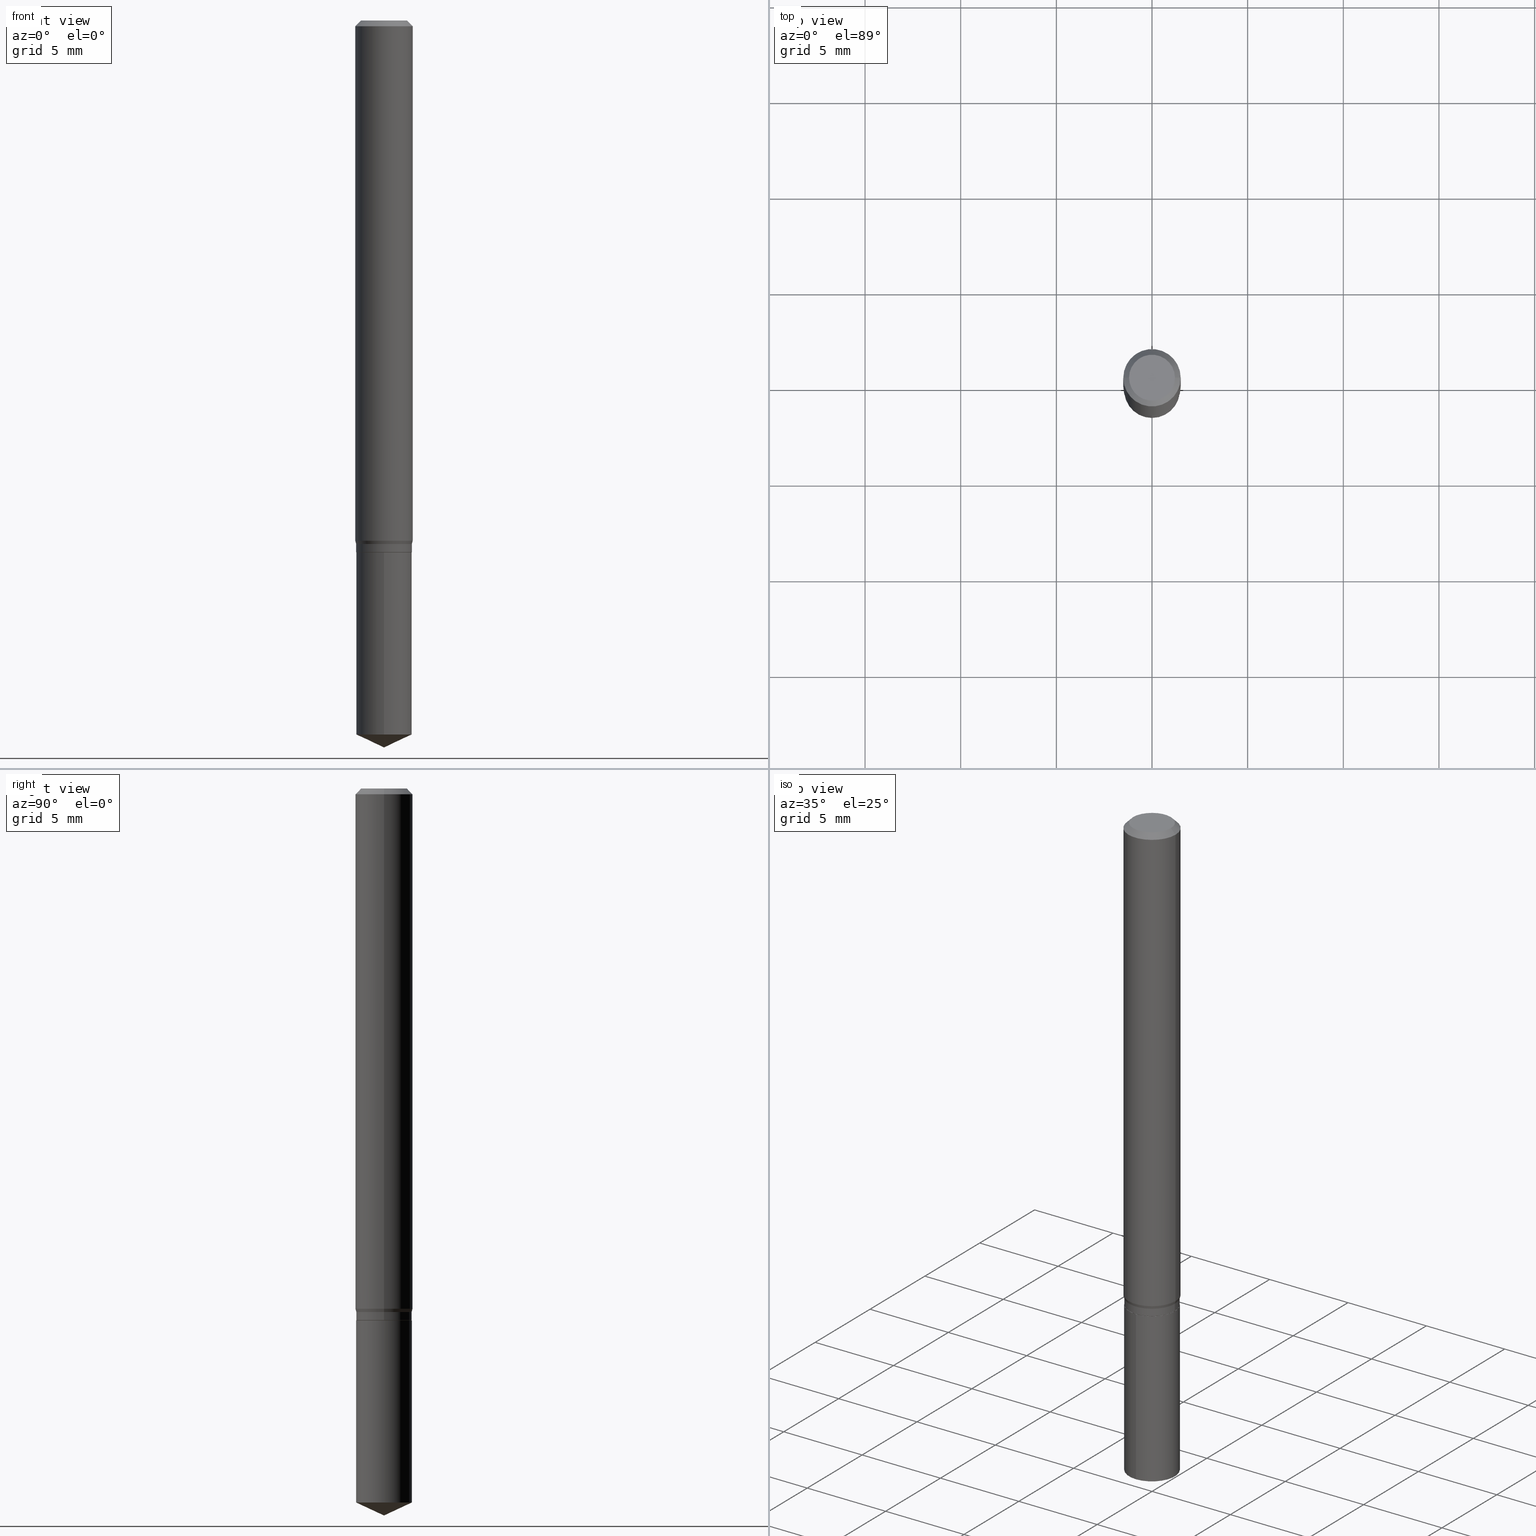
[diagram: canonical four-view strip — front | top / right | iso, engineering-drawing reading convention]
A machine part, canonical four-view strip (front | top / right | iso — engineering-drawing reading convention). The complete STEP part file that produces these views, byte-faithful:
ISO-10303-21;
HEADER;
FILE_DESCRIPTION (( 'STEP AP203' ),
    '1' );
FILE_NAME ('08054.STEP',
    '2024-04-24T10:05:20',
    ( '' ),
    ( '' ),
    'SwSTEP 2.0',
    'SolidWorks 2023',
    '' );
FILE_SCHEMA (( 'CONFIG_CONTROL_DESIGN' ));
ENDSEC;

DATA;
#1 = LENGTH_MEASURE_WITH_UNIT ( LENGTH_MEASURE( 0.02539999999999999897 ), #347 );
#2 = CARTESIAN_POINT ( 'NONE',  ( 2.676565608369632355E-29, -3.821426325363822773E-15, -1.094500000000000028 ) ) ;
#3 = ORIENTED_EDGE ( 'NONE', *, *, #273, .T. ) ;
#4 = CARTESIAN_POINT ( 'NONE',  ( 2.888098660104662014E-31, -4.123439461173777182E-17, -0.01181000000000006350 ) ) ;
#5 = CARTESIAN_POINT ( 'NONE',  ( 3.658672935554494692E-29, -5.223595400746700193E-15, -1.496099999999999985 ) ) ;
#6 = ORIENTED_EDGE ( 'NONE', *, *, #419, .T. ) ;
#7 = DIRECTION ( 'NONE',  ( 1.000000000000000000, -6.982962677686265133E-15, 0.000000000000000000 ) ) ;
#8 = CIRCLE ( 'NONE', #353, 0.05905000000000013016 ) ;
#9 = VERTEX_POINT ( 'NONE', #481 ) ;
#10 = VECTOR ( 'NONE', #381, 39.37007874015748854 ) ;
#11 = CYLINDRICAL_SURFACE ( 'NONE', #90, 0.05729999999999999677 ) ;
#12 = APPROVAL_STATUS ( 'not_yet_approved' ) ;
#13 = DIRECTION ( 'NONE',  ( -2.445458899330790108E-29, 3.491495526022433205E-15, 1.000000000000000000 ) ) ;
#14 = ORIENTED_EDGE ( 'NONE', *, *, #310, .T. ) ;
#15 = DIRECTION ( 'NONE',  ( 1.000000000000000000, -6.982962677686265133E-15, 0.000000000000000000 ) ) ;
#16 = ORIENTED_EDGE ( 'NONE', *, *, #161, .T. ) ;
#17 = DIRECTION ( 'NONE',  ( -2.445458899330790108E-29, 3.491495526022433205E-15, 1.000000000000000000 ) ) ;
#18 = ORIENTED_EDGE ( 'NONE', *, *, #161, .F. ) ;
#19 = APPROVAL_DATE_TIME ( #99, #73 ) ;
#20 = ORIENTED_EDGE ( 'NONE', *, *, #114, .F. ) ;
#21 = PERSON_AND_ORGANIZATION_ROLE ( 'classification_officer' ) ;
#22 = UNCERTAINTY_MEASURE_WITH_UNIT (LENGTH_MEASURE( 1.000000000000000082E-05 ), #42, 'distance_accuracy_value', 'NONE');
#23 = CARTESIAN_POINT ( 'NONE',  ( 4.071409875905640569E-16, 0.05729999999999616650, -1.094500000000000028 ) ) ;
#24 = EDGE_CURVE ( 'NONE', #196, #249, #103, .T. ) ;
#25 = APPROVAL_PERSON_ORGANIZATION ( #468, #73, #285 ) ;
#26 = ORIENTED_EDGE ( 'NONE', *, *, #419, .F. ) ;
#27 = ADVANCED_FACE ( 'NONE', ( #179 ), #408, .F. ) ;
#28 = CARTESIAN_POINT ( 'NONE',  ( 2.634503544903247383E-29, -3.761372846335720684E-15, -1.077299999999999924 ) ) ;
#29 = CARTESIAN_POINT ( 'NONE',  ( -0.05679999999999998939, -3.415188824277974545E-15, -1.094500000000000028 ) ) ;
#30 = CIRCLE ( 'NONE', #112, 0.05729999999999999677 ) ;
#31 = AXIS2_PLACEMENT_3D ( 'NONE', #78, #153, #76 ) ;
#32 = LINE ( 'NONE', #5, #183 ) ;
#33 = VECTOR ( 'NONE', #447, 39.37007874015748143 ) ;
#34 = EDGE_CURVE ( 'NONE', #196, #314, #175, .T. ) ;
#35 = FACE_OUTER_BOUND ( 'NONE', #241, .T. ) ;
#36 = EDGE_CURVE ( 'NONE', #314, #251, #63, .T. ) ;
#37 = DIRECTION ( 'NONE',  ( -2.445468806185136597E-29, 3.491481338843145583E-15, 1.000000000000000000 ) ) ;
#38 = AXIS2_PLACEMENT_3D ( 'NONE', #56, #17, #167 ) ;
#39 = AXIS2_PLACEMENT_3D ( 'NONE', #74, #232, #177 ) ;
#40 = ORIENTED_EDGE ( 'NONE', *, *, #123, .F. ) ;
#41 = DIRECTION ( 'NONE',  ( 1.000000000000000000, -6.982962677686266711E-15, 4.876176775795936353E-29 ) ) ;
#42 =( CONVERSION_BASED_UNIT ( 'INCH', #1 ) LENGTH_UNIT ( ) NAMED_UNIT ( #290 ) );
#43 = DIRECTION ( 'NONE',  ( -6.328713451373358335E-15, -0.9063077870366469391, 0.4226182617407059361 ) ) ;
#44 = ORIENTED_EDGE ( 'NONE', *, *, #248, .T. ) ;
#45 = CARTESIAN_POINT ( 'NONE',  ( -0.05904999999999999832, 3.711095515056362547E-16, -0.01181000000000006350 ) ) ;
#46 = EDGE_CURVE ( 'NONE', #234, #472, #330, .T. ) ;
#47 = VECTOR ( 'NONE', #460, 39.37007874015748143 ) ;
#48 = APPROVAL_DATE_TIME ( #362, #307 ) ;
#49 = AXIS2_PLACEMENT_3D ( 'NONE', #332, #306, #266 ) ;
#50 = CARTESIAN_POINT ( 'NONE',  ( 2.676565608369631794E-29, -3.821426325363822773E-15, -1.094499999999999806 ) ) ;
#51 = EDGE_LOOP ( 'NONE', ( #281, #361, #44, #26 ) ) ;
#52 = CALENDAR_DATE ( 2024, 24, 4 ) ;
#53 = CARTESIAN_POINT ( 'NONE',  ( 2.676565608369631794E-29, -3.821426325363822773E-15, -1.094499999999999806 ) ) ;
#54 = VERTEX_POINT ( 'NONE', #260 ) ;
#55 = PERSON_AND_ORGANIZATION_ROLE ( 'creator' ) ;
#56 = CARTESIAN_POINT ( 'NONE',  ( 2.676565608369631794E-29, -3.821426325363822773E-15, -1.094499999999999806 ) ) ;
#57 = CARTESIAN_POINT ( 'NONE',  ( -0.05730000000000001065, 4.071409875905374822E-16, -2.818549806716061527E-30 ) ) ;
#58 = PERSON_AND_ORGANIZATION ( #371, #289 ) ;
#59 = ADVANCED_FACE ( 'NONE', ( #411 ), #254, .T. ) ;
#60 = AXIS2_PLACEMENT_3D ( 'NONE', #259, #98, #410 ) ;
#61 = ORIENTED_EDGE ( 'NONE', *, *, #392, .F. ) ;
#62 = APPROVAL_STATUS ( 'not_yet_approved' ) ;
#63 = LINE ( 'NONE', #57, #465 ) ;
#64 = CARTESIAN_POINT ( 'NONE',  ( 0.000000000000000000, 0.000000000000000000, 0.000000000000000000 ) ) ;
#65 = VECTOR ( 'NONE', #250, 39.37007874015748143 ) ;
#66 = APPROVAL_PERSON_ORGANIZATION ( #124, #365, #252 ) ;
#67 = DIRECTION ( 'NONE',  ( 1.000000000000000000, -6.982962677686265922E-15, 0.000000000000000000 ) ) ;
#68 = CARTESIAN_POINT ( 'NONE',  ( -9.261924752013118283E-28, 1.322368428517963298E-13, 37.87397874015748300 ) ) ;
#69 = ADVANCED_FACE ( 'NONE', ( #215 ), #154, .T. ) ;
#70 = DIRECTION ( 'NONE',  ( 1.000000000000000000, -6.982962677686266711E-15, 4.876176775795936353E-29 ) ) ;
#71 = ADVANCED_FACE ( 'NONE', ( #428 ), #453, .T. ) ;
#72 = AXIS2_PLACEMENT_3D ( 'NONE', #210, #430, #15 ) ;
#73 = APPROVAL ( #12, 'UNSPECIFIED' ) ;
#74 = CARTESIAN_POINT ( 'NONE',  ( 0.000000000000000000, 0.000000000000000000, 0.000000000000000000 ) ) ;
#75 = ADVANCED_FACE ( 'NONE', ( #348 ), #142, .T. ) ;
#76 = DIRECTION ( 'NONE',  ( -6.982962677686265922E-15, -1.000000000000000000, 3.520397390770503963E-15 ) ) ;
#77 = VERTEX_POINT ( 'NONE', #157 ) ;
#78 = CARTESIAN_POINT ( 'NONE',  ( -9.261924752013118283E-28, 1.322368428517963298E-13, 37.87397874015748300 ) ) ;
#79 = DIRECTION ( 'NONE',  ( -2.445468806185136597E-29, 3.491481338843145583E-15, 1.000000000000000000 ) ) ;
#80 = ORIENTED_EDGE ( 'NONE', *, *, #105, .T. ) ;
#81 = CLOSED_SHELL ( 'NONE', ( #71, #69, #217, #485, #231, #438, #399, #59, #275, #458, #27, #75 ) ) ;
#82 = PLANE ( 'NONE',  #379 ) ;
#83 = DIRECTION ( 'NONE',  ( -2.445468806185136597E-29, 3.491481338843145583E-15, 1.000000000000000000 ) ) ;
#84 = ORIENTED_EDGE ( 'NONE', *, *, #186, .T. ) ;
#85 = LINE ( 'NONE', #318, #47 ) ;
#86 = PLANE ( 'NONE',  #418 ) ;
#87 = EDGE_LOOP ( 'NONE', ( #3, #244, #300, #439 ) ) ;
#88 = CALENDAR_DATE ( 2024, 24, 4 ) ;
#89 = DIRECTION ( 'NONE',  ( 2.445458899330789267E-29, -3.491495526022433599E-15, -1.000000000000000000 ) ) ;
#90 = AXIS2_PLACEMENT_3D ( 'NONE', #50, #13, #437 ) ;
#91 = ORIENTED_EDGE ( 'NONE', *, *, #105, .F. ) ;
#92 = MANIFOLD_SOLID_BREP ( 'Body-Move/Copy2[1]', #305 ) ;
#93 = DIRECTION ( 'NONE',  ( -2.445458899330790108E-29, 3.491495526022433205E-15, 1.000000000000000000 ) ) ;
#94 = ORIENTED_EDGE ( 'NONE', *, *, #261, .F. ) ;
#95 = CALENDAR_DATE ( 2024, 24, 4 ) ;
#96 = CARTESIAN_POINT ( 'NONE',  ( 3.593320637366847037E-29, -5.130320162458476413E-15, -1.469380571187718143 ) ) ;
#97 = EDGE_CURVE ( 'NONE', #145, #204, #423, .T. ) ;
#98 = DIRECTION ( 'NONE',  ( -2.438088387897960049E-29, 3.491481338843145188E-15, 1.000000000000000000 ) ) ;
#99 = DATE_AND_TIME ( #95, #230 ) ;
#100 = ORIENTED_EDGE ( 'NONE', *, *, #261, .T. ) ;
#101 = AXIS2_PLACEMENT_3D ( 'NONE', #246, #201, #354 ) ;
#102 = PRODUCT_DEFINITION_FORMATION_WITH_SPECIFIED_SOURCE ( 'ANY', '', #267, .NOT_KNOWN. ) ;
#103 = CIRCLE ( 'NONE', #454, 0.05679999999999998939 ) ;
#104 = ORIENTED_EDGE ( 'NONE', *, *, #376, .F. ) ;
#105 = EDGE_CURVE ( 'NONE', #9, #251, #223, .T. ) ;
#106 = EDGE_LOOP ( 'NONE', ( #349, #120, #20, #369 ) ) ;
#107 = DIRECTION ( 'NONE',  ( -2.445468806185136597E-29, 3.491481338843145583E-15, 1.000000000000000000 ) ) ;
#108 = CARTESIAN_POINT ( 'NONE',  ( 3.593320637366847037E-29, -5.130320162458476413E-15, -1.469380571187718143 ) ) ;
#109 = CARTESIAN_POINT ( 'NONE',  ( 8.265746106709734507E-48, -1.180129479067563789E-33, -3.380025165646692144E-19 ) ) ;
#110 = LINE ( 'NONE', #391, #488 ) ;
#111 = AXIS2_PLACEMENT_3D ( 'NONE', #68, #375, #200 ) ;
#112 = AXIS2_PLACEMENT_3D ( 'NONE', #108, #185, #416 ) ;
#113 = DIRECTION ( 'NONE',  ( -1.000000000000000000, 6.982962677686265922E-15, -4.876176775795935793E-29 ) ) ;
#114 = EDGE_CURVE ( 'NONE', #162, #333, #370, .T. ) ;
#115 = LINE ( 'NONE', #233, #10 ) ;
#116 = LINE ( 'NONE', #190, #474 ) ;
#117 = ORIENTED_EDGE ( 'NONE', *, *, #312, .T. ) ;
#118 = DIRECTION ( 'NONE',  ( -6.982962677686265922E-15, -1.000000000000000000, 2.383811512796041453E-15 ) ) ;
#119 = DIRECTION ( 'NONE',  ( -2.445468806185136597E-29, 3.491481338843145583E-15, 1.000000000000000000 ) ) ;
#120 = ORIENTED_EDGE ( 'NONE', *, *, #444, .T. ) ;
#121 = FACE_OUTER_BOUND ( 'NONE', #87, .T. ) ;
#122 = ORIENTED_EDGE ( 'NONE', *, *, #222, .T. ) ;
#123 = EDGE_CURVE ( 'NONE', #249, #328, #461, .T. ) ;
#124 = PERSON_AND_ORGANIZATION ( #371, #289 ) ;
#125 = CC_DESIGN_PERSON_AND_ORGANIZATION_ASSIGNMENT ( #140, #21, ( #263 ) ) ;
#126 = CARTESIAN_POINT ( 'NONE',  ( 0.05730000000000001065, -4.219804346125824087E-15, -1.093999999999999861 ) ) ;
#127 = ORIENTED_EDGE ( 'NONE', *, *, #273, .F. ) ;
#128 = ADVANCED_FACE ( 'NONE', ( #415 ), #256, .T. ) ;
#129 = CARTESIAN_POINT ( 'NONE',  ( -0.05730000000000000371, -3.383385727924523445E-15, -1.077299999999999924 ) ) ;
#130 = AXIS2_PLACEMENT_3D ( 'NONE', #264, #240, #67 ) ;
#131 = ORIENTED_EDGE ( 'NONE', *, *, #24, .F. ) ;
#132 = LOCAL_TIME ( 6, 5, 20.00000000000000000, #255 ) ;
#133 = DATE_AND_TIME ( #52, #397 ) ;
#134 = CARTESIAN_POINT ( 'NONE',  ( 2.888098660104662014E-31, -4.123439461173777182E-17, -0.01181000000000006350 ) ) ;
#135 = CC_DESIGN_PERSON_AND_ORGANIZATION_ASSIGNMENT ( #367, #323, ( #267 ) ) ;
#136 = EDGE_LOOP ( 'NONE', ( #117, #351, #91, #441 ) ) ;
#137 = APPROVAL_DATE_TIME ( #133, #365 ) ;
#138 = EDGE_LOOP ( 'NONE', ( #18, #184, #141 ) ) ;
#139 = CC_DESIGN_DATE_AND_TIME_ASSIGNMENT ( #245, #445, ( #263 ) ) ;
#140 = PERSON_AND_ORGANIZATION ( #371, #289 ) ;
#141 = ORIENTED_EDGE ( 'NONE', *, *, #165, .F. ) ;
#142 = CONICAL_SURFACE ( 'NONE', #338, 0.05679999999999998939, 0.7853981633972946241 ) ;
#143 =( GEOMETRIC_REPRESENTATION_CONTEXT ( 3 ) GLOBAL_UNCERTAINTY_ASSIGNED_CONTEXT ( ( #22 ) ) GLOBAL_UNIT_ASSIGNED_CONTEXT ( ( #42, #311, #156 ) ) REPRESENTATION_CONTEXT ( 'NONE', 'WORKASPACE' ) );
#144 = AXIS2_PLACEMENT_3D ( 'NONE', #449, #107, #389 ) ;
#145 = VERTEX_POINT ( 'NONE', #313 ) ;
#146 = PRODUCT_RELATED_PRODUCT_CATEGORY ( 'detail', '', ( #267 ) ) ;
#147 = CARTESIAN_POINT ( 'NONE',  ( 3.658651059288795076E-29, -5.223626456482161457E-15, -1.496099999999999985 ) ) ;
#148 = CARTESIAN_POINT ( 'NONE',  ( 0.05905000000000013016, -4.150913617390172394E-15, -1.070768911086753983 ) ) ;
#149 = VECTOR ( 'NONE', #43, 39.37007874015748143 ) ;
#150 = CONICAL_SURFACE ( 'NONE', #31, 84.42940631927314143, 1.134464013796310455 ) ;
#151 = CARTESIAN_POINT ( 'NONE',  ( -4.001237614313871708E-16, -0.05730000000000515237, -1.469380571187717921 ) ) ;
#152 = CC_DESIGN_PERSON_AND_ORGANIZATION_ASSIGNMENT ( #219, #292, ( #102 ) ) ;
#153 = DIRECTION ( 'NONE',  ( -2.445458899330790108E-29, 3.491495526022433205E-15, 1.000000000000000000 ) ) ;
#154 = CONICAL_SURFACE ( 'NONE', #49, 0.05904999999999999832, 0.7853981633974456145 ) ;
#155 = CIRCLE ( 'NONE', #475, 0.05904999999999999832 ) ;
#156 =( NAMED_UNIT ( * ) SI_UNIT ( $, .STERADIAN. ) SOLID_ANGLE_UNIT ( ) );
#157 = CARTESIAN_POINT ( 'NONE',  ( -0.04724000000000000421, 3.504923541997677355E-16, -3.380025165670481712E-19 ) ) ;
#158 = ORIENTED_EDGE ( 'NONE', *, *, #191, .T. ) ;
#159 = CARTESIAN_POINT ( 'NONE',  ( 4.132873053354867254E-48, -5.900647395337818946E-34, -1.690012582823346072E-19 ) ) ;
#160 = FACE_OUTER_BOUND ( 'NONE', #136, .T. ) ;
#161 = EDGE_CURVE ( 'NONE', #145, #234, #32, .T. ) ;
#162 = VERTEX_POINT ( 'NONE', #262 ) ;
#163 = FACE_OUTER_BOUND ( 'NONE', #429, .T. ) ;
#164 = VECTOR ( 'NONE', #187, 39.37007874015748143 ) ;
#165 = EDGE_CURVE ( 'NONE', #234, #204, #30, .T. ) ;
#166 = CC_DESIGN_PERSON_AND_ORGANIZATION_ASSIGNMENT ( #356, #55, ( #225 ) ) ;
#167 = DIRECTION ( 'NONE',  ( -6.982962677686265922E-15, -1.000000000000000000, 2.383811512796041453E-15 ) ) ;
#168 = ORIENTED_EDGE ( 'NONE', *, *, #480, .F. ) ;
#169 = COORDINATED_UNIVERSAL_TIME_OFFSET ( 5, 0, .BEHIND. ) ;
#170 = DIRECTION ( 'NONE',  ( -1.000000000000000000, 6.982962677686266711E-15, 0.000000000000000000 ) ) ;
#171 = ADVANCED_BREP_SHAPE_REPRESENTATION ( '08054', ( #92, #406, #39 ), #143 ) ;
#172 = EDGE_LOOP ( 'NONE', ( #405, #16, #127 ) ) ;
#173 = CARTESIAN_POINT ( 'NONE',  ( 0.04724000000000000421, -3.852183633974369345E-16, -3.380025165621689721E-19 ) ) ;
#174 = VECTOR ( 'NONE', #237, 39.37007874015748143 ) ;
#175 = LINE ( 'NONE', #218, #189 ) ;
#176 = CC_DESIGN_APPROVAL ( #365, ( #225 ) ) ;
#177 = DIRECTION ( 'NONE',  ( 1.000000000000000000, 0.000000000000000000, 0.000000000000000000 ) ) ;
#178 = DIRECTION ( 'NONE',  ( -2.445468806185136597E-29, 3.491481338843145583E-15, 1.000000000000000000 ) ) ;
#179 = FACE_OUTER_BOUND ( 'NONE', #443, .T. ) ;
#180 = PERSON_AND_ORGANIZATION_ROLE ( 'creator' ) ;
#181 = VERTEX_POINT ( 'NONE', #148 ) ;
#182 = ORIENTED_EDGE ( 'NONE', *, *, #46, .F. ) ;
#183 = VECTOR ( 'NONE', #341, 39.37007874015747433 ) ;
#184 = ORIENTED_EDGE ( 'NONE', *, *, #97, .T. ) ;
#185 = DIRECTION ( 'NONE',  ( -2.445458899330790108E-29, 3.491495526022433205E-15, 1.000000000000000000 ) ) ;
#186 = EDGE_CURVE ( 'NONE', #251, #9, #334, .T. ) ;
#187 = DIRECTION ( 'NONE',  ( 0.7071067811864388819, -2.468850131081119129E-15, 0.7071067811866561525 ) ) ;
#188 = CC_DESIGN_APPROVAL ( #307, ( #263 ) ) ;
#189 = VECTOR ( 'NONE', #366, 39.37007874015748143 ) ;
#190 = CARTESIAN_POINT ( 'NONE',  ( 0.05730000000000001065, -4.001237614314231626E-16, 2.794049292531071960E-30 ) ) ;
#191 = EDGE_CURVE ( 'NONE', #77, #390, #298, .T. ) ;
#192 = CARTESIAN_POINT ( 'NONE',  ( 2.676565608369631794E-29, -3.821426325363822773E-15, -1.094499999999999806 ) ) ;
#193 = DIRECTION ( 'NONE',  ( -2.445468806185136597E-29, 3.491481338843145583E-15, 1.000000000000000000 ) ) ;
#194 = CIRCLE ( 'NONE', #378, 0.05730000000000001065 ) ;
#195 = LOCAL_TIME ( 6, 5, 20.00000000000000000, #212 ) ;
#196 = VERTEX_POINT ( 'NONE', #29 ) ;
#197 = FACE_OUTER_BOUND ( 'NONE', #402, .T. ) ;
#198 = CARTESIAN_POINT ( 'NONE',  ( 4.071409875905733753E-16, 0.05729999999999488280, -1.469380571187718587 ) ) ;
#199 = ORIENTED_EDGE ( 'NONE', *, *, #123, .T. ) ;
#200 = DIRECTION ( 'NONE',  ( -6.982962677686265922E-15, -1.000000000000000000, 3.520397390770503963E-15 ) ) ;
#201 = DIRECTION ( 'NONE',  ( -2.445458899330790108E-29, 3.491495526022433205E-15, 1.000000000000000000 ) ) ;
#202 = CIRCLE ( 'NONE', #385, 0.05729999999999999677 ) ;
#203 = EDGE_CURVE ( 'NONE', #328, #9, #116, .T. ) ;
#204 = VERTEX_POINT ( 'NONE', #151 ) ;
#205 = CIRCLE ( 'NONE', #308, 0.05729999999999999677 ) ;
#206 = SHAPE_DEFINITION_REPRESENTATION ( #380, #171 ) ;
#207 = DIRECTION ( 'NONE',  ( -6.982962677686265922E-15, -1.000000000000000000, 4.767623025592082905E-15 ) ) ;
#208 = ORIENTED_EDGE ( 'NONE', *, *, #24, .T. ) ;
#209 = DATE_AND_TIME ( #88, #346 ) ;
#210 = CARTESIAN_POINT ( 'NONE',  ( 2.618531970695483094E-29, -3.738569671272796685E-15, -1.070768911086753983 ) ) ;
#211 = EDGE_LOOP ( 'NONE', ( #258, #208, #199, #421 ) ) ;
#212 = COORDINATED_UNIVERSAL_TIME_OFFSET ( 5, 0, .BEHIND. ) ;
#213 = CARTESIAN_POINT ( 'NONE',  ( 2.675342873966538993E-29, -3.819680584694400481E-15, -1.093999999999999861 ) ) ;
#214 = CONICAL_SURFACE ( 'NONE', #216, 0.05730000000000000371, 0.2617993877991509621 ) ;
#215 = FACE_OUTER_BOUND ( 'NONE', #355, .T. ) ;
#216 = AXIS2_PLACEMENT_3D ( 'NONE', #466, #388, #490 ) ;
#217 = ADVANCED_FACE ( 'NONE', ( #224 ), #489, .T. ) ;
#218 = CARTESIAN_POINT ( 'NONE',  ( -0.05679999999999998939, -3.417838051452086140E-15, -1.094500000000000028 ) ) ;
#219 = PERSON_AND_ORGANIZATION ( #371, #289 ) ;
#220 = DIRECTION ( 'NONE',  ( -2.445468806185136877E-29, 3.491481338843145188E-15, 1.000000000000000000 ) ) ;
#221 = DIRECTION ( 'NONE',  ( -2.445468806185136597E-29, 3.491481338843145583E-15, 1.000000000000000000 ) ) ;
#222 = EDGE_CURVE ( 'NONE', #9, #181, #228, .T. ) ;
#223 = CIRCLE ( 'NONE', #130, 0.05730000000000000371 ) ;
#224 = FACE_OUTER_BOUND ( 'NONE', #106, .T. ) ;
#225 = PRODUCT_DEFINITION ( 'UNKNOWN', '', #102, #272 ) ;
#226 = APPLICATION_CONTEXT ( 'configuration controlled 3d designs of mechanical parts and assemblies' ) ;
#227 = DIRECTION ( 'NONE',  ( 1.000000000000000000, -6.982962677686265922E-15, 0.000000000000000000 ) ) ;
#228 = LINE ( 'NONE', #373, #174 ) ;
#229 = CIRCLE ( 'NONE', #72, 0.05905000000000013016 ) ;
#230 = LOCAL_TIME ( 6, 5, 20.00000000000000000, #169 ) ;
#231 = ADVANCED_FACE ( 'NONE', ( #160 ), #377, .T. ) ;
#232 = DIRECTION ( 'NONE',  ( 0.000000000000000000, 0.000000000000000000, 1.000000000000000000 ) ) ;
#233 = CARTESIAN_POINT ( 'NONE',  ( 0.05904999999999999832, -4.463468013801466955E-16, -0.01181000000000006350 ) ) ;
#234 = VERTEX_POINT ( 'NONE', #198 ) ;
#235 = CARTESIAN_POINT ( 'NONE',  ( 2.634503544903247383E-29, -3.761372846335720684E-15, -1.077299999999999924 ) ) ;
#236 = AXIS2_PLACEMENT_3D ( 'NONE', #28, #342, #227 ) ;
#237 = DIRECTION ( 'NONE',  ( 0.2588190451025222383, 1.565188264969614868E-15, 0.9659258262890678681 ) ) ;
#238 = ORIENTED_EDGE ( 'NONE', *, *, #165, .T. ) ;
#239 = FACE_OUTER_BOUND ( 'NONE', #467, .T. ) ;
#240 = DIRECTION ( 'NONE',  ( -2.445468806185136597E-29, 3.491481338843145583E-15, 1.000000000000000000 ) ) ;
#241 = EDGE_LOOP ( 'NONE', ( #158, #446 ) ) ;
#242 = APPLICATION_PROTOCOL_DEFINITION ( 'international standard', 'config_control_design', 1994, #226 ) ;
#243 = CARTESIAN_POINT ( 'NONE',  ( -0.05904999999999999832, -1.470326547475926925E-15, -0.01181000000000006350 ) ) ;
#244 = ORIENTED_EDGE ( 'NONE', *, *, #46, .T. ) ;
#245 = DATE_AND_TIME ( #359, #132 ) ;
#246 = CARTESIAN_POINT ( 'NONE',  ( 2.676565608369631794E-29, -3.821426325363822773E-15, -1.094499999999999806 ) ) ;
#247 = VECTOR ( 'NONE', #278, 39.37007874015748143 ) ;
#248 = EDGE_CURVE ( 'NONE', #181, #162, #487, .T. ) ;
#249 = VERTEX_POINT ( 'NONE', #404 ) ;
#250 = DIRECTION ( 'NONE',  ( -2.445458899330790108E-29, 3.491495526022433599E-15, 1.000000000000000000 ) ) ;
#251 = VERTEX_POINT ( 'NONE', #129 ) ;
#252 = APPROVAL_ROLE ( '' ) ;
#253 = DIRECTION ( 'NONE',  ( 1.000000000000000000, -6.982962677686265133E-15, 0.000000000000000000 ) ) ;
#254 = CYLINDRICAL_SURFACE ( 'NONE', #396, 0.05905000000000006771 ) ;
#255 = COORDINATED_UNIVERSAL_TIME_OFFSET ( 5, 0, .BEHIND. ) ;
#256 = CONICAL_SURFACE ( 'NONE', #111, 84.42940631927314143, 1.134464013796310455 ) ;
#257 = AXIS2_PLACEMENT_3D ( 'NONE', #422, #343, #420 ) ;
#258 = ORIENTED_EDGE ( 'NONE', *, *, #34, .F. ) ;
#259 = CARTESIAN_POINT ( 'NONE',  ( 8.386156365596109893E-30, -6.453475294611654186E-15, -1.094500000000000028 ) ) ;
#260 = CARTESIAN_POINT ( 'NONE',  ( -4.001237614313962920E-16, -0.05730000000000382010, -1.094499999999999806 ) ) ;
#261 = EDGE_CURVE ( 'NONE', #77, #333, #280, .T. ) ;
#262 = CARTESIAN_POINT ( 'NONE',  ( 0.05904999999999999832, -4.535783407291118600E-16, -0.01181000000000006350 ) ) ;
#263 = SECURITY_CLASSIFICATION ( '', '', #435 ) ;
#264 = CARTESIAN_POINT ( 'NONE',  ( 2.634503544903247383E-29, -3.761372846335720684E-15, -1.077299999999999924 ) ) ;
#265 = CC_DESIGN_PERSON_AND_ORGANIZATION_ASSIGNMENT ( #331, #180, ( #102 ) ) ;
#266 = DIRECTION ( 'NONE',  ( -1.000000000000000000, 6.982962677686266711E-15, 0.000000000000000000 ) ) ;
#267 = PRODUCT ( '08054', '08054', '', ( #326 ) ) ;
#268 = CONICAL_SURFACE ( 'NONE', #287, 0.05904999999999999832, 0.7853981633974456145 ) ;
#269 = FACE_OUTER_BOUND ( 'NONE', #138, .T. ) ;
#270 = AXIS2_PLACEMENT_3D ( 'NONE', #213, #398, #363 ) ;
#271 = DIRECTION ( 'NONE',  ( -2.445458899330790108E-29, 3.491495526022433205E-15, 1.000000000000000000 ) ) ;
#272 = DESIGN_CONTEXT ( 'detailed design', #414, 'design' ) ;
#273 = EDGE_CURVE ( 'NONE', #204, #234, #205, .T. ) ;
#274 = CARTESIAN_POINT ( 'NONE',  ( 0.000000000000000000, 0.000000000000000000, 0.000000000000000000 ) ) ;
#275 = ADVANCED_FACE ( 'NONE', ( #327 ), #268, .T. ) ;
#276 = EDGE_LOOP ( 'NONE', ( #387, #484, #100, #6 ) ) ;
#277 = CARTESIAN_POINT ( 'NONE',  ( 4.071409875905732767E-16, 0.05729999999999616650, -1.094500000000000028 ) ) ;
#278 = DIRECTION ( 'NONE',  ( -2.445468806185136877E-29, 3.491481338843145188E-15, 1.000000000000000000 ) ) ;
#279 = EDGE_LOOP ( 'NONE', ( #424, #299 ) ) ;
#280 = LINE ( 'NONE', #45, #319 ) ;
#281 = ORIENTED_EDGE ( 'NONE', *, *, #444, .F. ) ;
#282 = EDGE_CURVE ( 'NONE', #54, #472, #450, .T. ) ;
#283 = CARTESIAN_POINT ( 'NONE',  ( -0.05730000000000001065, -3.383385727924523445E-15, -1.093999999999999861 ) ) ;
#284 = EDGE_LOOP ( 'NONE', ( #400, #394, #322, #40 ) ) ;
#285 = APPROVAL_ROLE ( '' ) ;
#286 = FACE_OUTER_BOUND ( 'NONE', #279, .T. ) ;
#287 = AXIS2_PLACEMENT_3D ( 'NONE', #134, #329, #170 ) ;
#288 = CC_DESIGN_DATE_AND_TIME_ASSIGNMENT ( #209, #432, ( #225 ) ) ;
#289 = ORGANIZATION ( 'UNSPECIFIED', 'UNSPECIFIED', '' ) ;
#290 = DIMENSIONAL_EXPONENTS ( 1.000000000000000000, 0.000000000000000000, 0.000000000000000000, 0.000000000000000000, 0.000000000000000000, 0.000000000000000000, 0.000000000000000000 ) ;
#291 = ORIENTED_EDGE ( 'NONE', *, *, #203, .T. ) ;
#292 = PERSON_AND_ORGANIZATION_ROLE ( 'design_supplier' ) ;
#293 = CARTESIAN_POINT ( 'NONE',  ( 2.618531970695483094E-29, -3.738569671272796685E-15, -1.070768911086753983 ) ) ;
#294 = ADVANCED_FACE ( 'NONE', ( #357 ), #11, .T. ) ;
#295 = CARTESIAN_POINT ( 'NONE',  ( 2.676565608369632355E-29, -3.821426325363822773E-15, -1.094500000000000028 ) ) ;
#296 = COORDINATED_UNIVERSAL_TIME_OFFSET ( 5, 0, .BEHIND. ) ;
#297 = ORIENTED_EDGE ( 'NONE', *, *, #186, .F. ) ;
#298 = CIRCLE ( 'NONE', #436, 0.04724000000000000421 ) ;
#299 = ORIENTED_EDGE ( 'NONE', *, *, #409, .T. ) ;
#300 = ORIENTED_EDGE ( 'NONE', *, *, #282, .F. ) ;
#301 = DIRECTION ( 'NONE',  ( 1.000000000000000000, -6.982962677686267499E-15, 0.000000000000000000 ) ) ;
#302 = DIRECTION ( 'NONE',  ( -2.445468806185136597E-29, 3.491481338843145583E-15, 1.000000000000000000 ) ) ;
#303 = AXIS2_PLACEMENT_3D ( 'NONE', #434, #324, #401 ) ;
#304 = CC_DESIGN_APPROVAL ( #73, ( #102 ) ) ;
#305 = CLOSED_SHELL ( 'NONE', ( #337, #128, #448, #294, #368 ) ) ;
#306 = DIRECTION ( 'NONE',  ( 2.445468806185136597E-29, -3.491481338843145583E-15, -1.000000000000000000 ) ) ;
#307 = APPROVAL ( #62, 'UNSPECIFIED' ) ;
#308 = AXIS2_PLACEMENT_3D ( 'NONE', #96, #93, #207 ) ;
#309 = DIRECTION ( 'NONE',  ( -2.445468806185136597E-29, 3.491481338843145583E-15, 1.000000000000000000 ) ) ;
#310 = EDGE_CURVE ( 'NONE', #204, #54, #321, .T. ) ;
#311 =( NAMED_UNIT ( * ) PLANE_ANGLE_UNIT ( ) SI_UNIT ( $, .RADIAN. ) );
#312 = EDGE_CURVE ( 'NONE', #328, #314, #194, .T. ) ;
#313 = CARTESIAN_POINT ( 'NONE',  ( 3.658651059288794515E-29, -5.223626456482161457E-15, -1.496099999999999985 ) ) ;
#314 = VERTEX_POINT ( 'NONE', #283 ) ;
#315 = DIRECTION ( 'NONE',  ( 2.438088387897960049E-29, -3.491481338843145188E-15, -1.000000000000000000 ) ) ;
#316 = CARTESIAN_POINT ( 'NONE',  ( 0.05905000000000006771, -4.123439461173745257E-16, 2.879382386107503723E-30 ) ) ;
#317 = ORIENTED_EDGE ( 'NONE', *, *, #358, .F. ) ;
#318 = CARTESIAN_POINT ( 'NONE',  ( -0.05730000000000000371, -3.354231858745183153E-15, -1.077299999999999924 ) ) ;
#319 = VECTOR ( 'NONE', #440, 39.37007874015748854 ) ;
#320 = AXIS2_PLACEMENT_3D ( 'NONE', #235, #193, #345 ) ;
#321 = LINE ( 'NONE', #471, #65 ) ;
#322 = ORIENTED_EDGE ( 'NONE', *, *, #312, .F. ) ;
#323 = PERSON_AND_ORGANIZATION_ROLE ( 'design_owner' ) ;
#324 = DIRECTION ( 'NONE',  ( -2.445468806185136597E-29, 3.491481338843145583E-15, 1.000000000000000000 ) ) ;
#325 = ORIENTED_EDGE ( 'NONE', *, *, #114, .T. ) ;
#326 = MECHANICAL_CONTEXT ( 'NONE', #226, 'mechanical' ) ;
#327 = FACE_OUTER_BOUND ( 'NONE', #276, .T. ) ;
#328 = VERTEX_POINT ( 'NONE', #126 ) ;
#329 = DIRECTION ( 'NONE',  ( 2.445468806185136597E-29, -3.491481338843145583E-15, -1.000000000000000000 ) ) ;
#330 = LINE ( 'NONE', #23, #33 ) ;
#331 = PERSON_AND_ORGANIZATION ( #371, #289 ) ;
#332 = CARTESIAN_POINT ( 'NONE',  ( 2.888098660104662014E-31, -4.123439461173777182E-17, -0.01181000000000006350 ) ) ;
#333 = VERTEX_POINT ( 'NONE', #243 ) ;
#334 = CIRCLE ( 'NONE', #236, 0.05730000000000000371 ) ;
#335 = CONICAL_SURFACE ( 'NONE', #320, 0.05730000000000000371, 0.2617993877991509621 ) ;
#336 = ORIENTED_EDGE ( 'NONE', *, *, #409, .F. ) ;
#337 = ADVANCED_FACE ( 'NONE', ( #121 ), #476, .T. ) ;
#338 = AXIS2_PLACEMENT_3D ( 'NONE', #451, #83, #301 ) ;
#339 = ORIENTED_EDGE ( 'NONE', *, *, #36, .F. ) ;
#340 = CARTESIAN_POINT ( 'NONE',  ( 0.000000000000000000, 0.000000000000000000, 0.000000000000000000 ) ) ;
#341 = DIRECTION ( 'NONE',  ( 6.439704144417014576E-15, 0.9063077870366499367, 0.4226182617406997188 ) ) ;
#342 = DIRECTION ( 'NONE',  ( -2.445468806185136597E-29, 3.491481338843145583E-15, 1.000000000000000000 ) ) ;
#343 = DIRECTION ( 'NONE',  ( -2.445468806185136597E-29, 3.491481338843145583E-15, 1.000000000000000000 ) ) ;
#344 = AXIS2_PLACEMENT_3D ( 'NONE', #340, #302, #41 ) ;
#345 = DIRECTION ( 'NONE',  ( 1.000000000000000000, -6.982962677686265922E-15, 0.000000000000000000 ) ) ;
#346 = LOCAL_TIME ( 6, 5, 20.00000000000000000, #296 ) ;
#347 =( LENGTH_UNIT ( ) NAMED_UNIT ( * ) SI_UNIT ( $, .METRE. ) );
#348 = FACE_OUTER_BOUND ( 'NONE', #211, .T. ) ;
#349 = ORIENTED_EDGE ( 'NONE', *, *, #392, .T. ) ;
#350 = DIRECTION ( 'NONE',  ( -2.445468806185136597E-29, 3.491481338843145583E-15, 1.000000000000000000 ) ) ;
#351 = ORIENTED_EDGE ( 'NONE', *, *, #36, .T. ) ;
#352 = CYLINDRICAL_SURFACE ( 'NONE', #257, 0.05730000000000001065 ) ;
#353 = AXIS2_PLACEMENT_3D ( 'NONE', #293, #178, #7 ) ;
#354 = DIRECTION ( 'NONE',  ( -6.982962677686265922E-15, -1.000000000000000000, 2.383811512796041453E-15 ) ) ;
#355 = EDGE_LOOP ( 'NONE', ( #168, #486, #325, #94 ) ) ;
#356 = PERSON_AND_ORGANIZATION ( #371, #289 ) ;
#357 = FACE_OUTER_BOUND ( 'NONE', #383, .T. ) ;
#358 = EDGE_CURVE ( 'NONE', #249, #196, #384, .T. ) ;
#359 = CALENDAR_DATE ( 2024, 24, 4 ) ;
#360 = CARTESIAN_POINT ( 'NONE',  ( 2.675342873966538993E-29, -3.819680584694400481E-15, -1.093999999999999861 ) ) ;
#361 = ORIENTED_EDGE ( 'NONE', *, *, #376, .T. ) ;
#362 = DATE_AND_TIME ( #478, #195 ) ;
#363 = DIRECTION ( 'NONE',  ( 1.000000000000000000, -6.982962677686265133E-15, 0.000000000000000000 ) ) ;
#364 = DIRECTION ( 'NONE',  ( 1.000000000000000000, -6.982962677686267499E-15, 0.000000000000000000 ) ) ;
#365 = APPROVAL ( #403, 'UNSPECIFIED' ) ;
#366 = DIRECTION ( 'NONE',  ( -0.7071067811864388819, 7.493145998869961307E-15, 0.7071067811866561525 ) ) ;
#367 = PERSON_AND_ORGANIZATION ( #371, #289 ) ;
#368 = ADVANCED_FACE ( 'NONE', ( #286 ), #86, .F. ) ;
#369 = ORIENTED_EDGE ( 'NONE', *, *, #248, .F. ) ;
#370 = CIRCLE ( 'NONE', #144, 0.05904999999999999832 ) ;
#371 = PERSON ( 'UNSPECIFIED', 'UNSPECIFIED', 'UNSPECIFIED', ('UNSPECIFIED'), ('UNSPECIFIED'), ('UNSPECIFIED') ) ;
#372 = DIRECTION ( 'NONE',  ( -2.445468806185136597E-29, 3.491481338843145583E-15, 1.000000000000000000 ) ) ;
#373 = CARTESIAN_POINT ( 'NONE',  ( 0.05730000000000000371, -4.161496607767144290E-15, -1.077299999999999924 ) ) ;
#374 = EDGE_CURVE ( 'NONE', #314, #328, #483, .T. ) ;
#375 = DIRECTION ( 'NONE',  ( -2.445458899330790108E-29, 3.491495526022433205E-15, 1.000000000000000000 ) ) ;
#376 = EDGE_CURVE ( 'NONE', #459, #181, #229, .T. ) ;
#377 = CYLINDRICAL_SURFACE ( 'NONE', #344, 0.05730000000000001065 ) ;
#378 = AXIS2_PLACEMENT_3D ( 'NONE', #360, #469, #253 ) ;
#379 = AXIS2_PLACEMENT_3D ( 'NONE', #159, #315, #113 ) ;
#380 = PRODUCT_DEFINITION_SHAPE ( 'NONE', 'NONE',  #225 ) ;
#381 = DIRECTION ( 'NONE',  ( 0.7071067811865454633, -7.319954787623246579E-15, -0.7071067811865493491 ) ) ;
#382 = CARTESIAN_POINT ( 'NONE',  ( 8.265746106709734507E-48, -1.180129479067563789E-33, -3.380025165646692144E-19 ) ) ;
#383 = EDGE_LOOP ( 'NONE', ( #182, #238, #14, #336 ) ) ;
#384 = CIRCLE ( 'NONE', #303, 0.05679999999999998939 ) ;
#385 = AXIS2_PLACEMENT_3D ( 'NONE', #192, #271, #118 ) ;
#386 = DIRECTION ( 'NONE',  ( -2.445468806185136877E-29, 3.491481338843145188E-15, 1.000000000000000000 ) ) ;
#387 = ORIENTED_EDGE ( 'NONE', *, *, #462, .F. ) ;
#388 = DIRECTION ( 'NONE',  ( -2.445468806185136597E-29, 3.491481338843145583E-15, 1.000000000000000000 ) ) ;
#389 = DIRECTION ( 'NONE',  ( 1.000000000000000000, -6.982962677686266711E-15, 0.000000000000000000 ) ) ;
#390 = VERTEX_POINT ( 'NONE', #173 ) ;
#391 = CARTESIAN_POINT ( 'NONE',  ( -0.05905000000000006771, 4.195754854663396409E-16, -2.904631170795525045E-30 ) ) ;
#392 = EDGE_CURVE ( 'NONE', #181, #459, #8, .T. ) ;
#393 = DIRECTION ( 'NONE',  ( 6.982962677686265922E-15, 1.000000000000000000, -3.491495526022433599E-15 ) ) ;
#394 = ORIENTED_EDGE ( 'NONE', *, *, #34, .T. ) ;
#395 = APPROVAL_ROLE ( '' ) ;
#396 = AXIS2_PLACEMENT_3D ( 'NONE', #64, #221, #477 ) ;
#397 = LOCAL_TIME ( 6, 5, 20.00000000000000000, #473 ) ;
#398 = DIRECTION ( 'NONE',  ( -2.445468806185136597E-29, 3.491481338843145583E-15, 1.000000000000000000 ) ) ;
#399 = ADVANCED_FACE ( 'NONE', ( #163 ), #214, .T. ) ;
#400 = ORIENTED_EDGE ( 'NONE', *, *, #358, .T. ) ;
#401 = DIRECTION ( 'NONE',  ( 1.000000000000000000, -6.982962677686267499E-15, 0.000000000000000000 ) ) ;
#402 = EDGE_LOOP ( 'NONE', ( #339, #470, #291, #297 ) ) ;
#403 = APPROVAL_STATUS ( 'not_yet_approved' ) ;
#404 = CARTESIAN_POINT ( 'NONE',  ( 0.05679999999999998939, -4.218058605456403373E-15, -1.094500000000000028 ) ) ;
#405 = ORIENTED_EDGE ( 'NONE', *, *, #97, .F. ) ;
#406 = MANIFOLD_SOLID_BREP ( 'Body-Move/Copy2[2]', #81 ) ;
#407 = AXIS2_PLACEMENT_3D ( 'NONE', #382, #37, #426 ) ;
#408 = PLANE ( 'NONE',  #60 ) ;
#409 = EDGE_CURVE ( 'NONE', #472, #54, #202, .T. ) ;
#410 = DIRECTION ( 'NONE',  ( 1.000000000000000000, -6.982962677686265922E-15, 4.876176775795935793E-29 ) ) ;
#411 = FACE_OUTER_BOUND ( 'NONE', #51, .T. ) ;
#412 = APPROVAL_PERSON_ORGANIZATION ( #58, #307, #395 ) ;
#413 = DIRECTION ( 'NONE',  ( 1.000000000000000000, -6.982962677686266711E-15, 4.876185090822587894E-29 ) ) ;
#414 = APPLICATION_CONTEXT ( 'configuration controlled 3d designs of mechanical parts and assemblies' ) ;
#415 = FACE_OUTER_BOUND ( 'NONE', #172, .T. ) ;
#416 = DIRECTION ( 'NONE',  ( -6.982962677686265922E-15, -1.000000000000000000, 4.767623025592082905E-15 ) ) ;
#417 = CARTESIAN_POINT ( 'NONE',  ( -0.05905000000000013016, -3.318994185806457192E-15, -1.070768911086753983 ) ) ;
#418 = AXIS2_PLACEMENT_3D ( 'NONE', #53, #89, #393 ) ;
#419 = EDGE_CURVE ( 'NONE', #333, #162, #155, .T. ) ;
#420 = DIRECTION ( 'NONE',  ( 1.000000000000000000, -6.982962677686266711E-15, 4.876176775795936353E-29 ) ) ;
#421 = ORIENTED_EDGE ( 'NONE', *, *, #374, .F. ) ;
#422 = CARTESIAN_POINT ( 'NONE',  ( 0.000000000000000000, 0.000000000000000000, 0.000000000000000000 ) ) ;
#423 = LINE ( 'NONE', #147, #149 ) ;
#424 = ORIENTED_EDGE ( 'NONE', *, *, #282, .T. ) ;
#425 = AXIS2_PLACEMENT_3D ( 'NONE', #2, #119, #452 ) ;
#426 = DIRECTION ( 'NONE',  ( 1.000000000000000000, -6.982962677686266711E-15, 4.876185090822587894E-29 ) ) ;
#427 = CIRCLE ( 'NONE', #407, 0.04724000000000000421 ) ;
#428 = FACE_OUTER_BOUND ( 'NONE', #284, .T. ) ;
#429 = EDGE_LOOP ( 'NONE', ( #479, #84, #122, #104 ) ) ;
#430 = DIRECTION ( 'NONE',  ( -2.445468806185136597E-29, 3.491481338843145583E-15, 1.000000000000000000 ) ) ;
#431 = ORIENTED_EDGE ( 'NONE', *, *, #222, .F. ) ;
#432 = DATE_TIME_ROLE ( 'creation_date' ) ;
#433 = EDGE_CURVE ( 'NONE', #251, #459, #85, .T. ) ;
#434 = CARTESIAN_POINT ( 'NONE',  ( 2.676565608369632355E-29, -3.821426325363822773E-15, -1.094500000000000028 ) ) ;
#435 = SECURITY_CLASSIFICATION_LEVEL ( 'unclassified' ) ;
#436 = AXIS2_PLACEMENT_3D ( 'NONE', #109, #350, #413 ) ;
#437 = DIRECTION ( 'NONE',  ( -6.982962677686265922E-15, -1.000000000000000000, 2.383811512796041453E-15 ) ) ;
#438 = ADVANCED_FACE ( 'NONE', ( #197 ), #352, .T. ) ;
#439 = ORIENTED_EDGE ( 'NONE', *, *, #310, .F. ) ;
#440 = DIRECTION ( 'NONE',  ( -0.7071067811865454633, 2.468850131082235761E-15, -0.7071067811865493491 ) ) ;
#441 = ORIENTED_EDGE ( 'NONE', *, *, #203, .F. ) ;
#442 = APPLICATION_PROTOCOL_DEFINITION ( 'international standard', 'config_control_design', 1994, #414 ) ;
#443 = EDGE_LOOP ( 'NONE', ( #317, #131 ) ) ;
#444 = EDGE_CURVE ( 'NONE', #459, #333, #110, .T. ) ;
#445 = DATE_TIME_ROLE ( 'classification_date' ) ;
#446 = ORIENTED_EDGE ( 'NONE', *, *, #480, .T. ) ;
#447 = DIRECTION ( 'NONE',  ( -2.445458899330790108E-29, 3.491495526022433599E-15, 1.000000000000000000 ) ) ;
#448 = ADVANCED_FACE ( 'NONE', ( #269 ), #150, .T. ) ;
#449 = CARTESIAN_POINT ( 'NONE',  ( 2.888098660104662014E-31, -4.123439461173777182E-17, -0.01181000000000006350 ) ) ;
#450 = CIRCLE ( 'NONE', #101, 0.05729999999999999677 ) ;
#451 = CARTESIAN_POINT ( 'NONE',  ( 2.676565608369632355E-29, -3.821426325363822773E-15, -1.094500000000000028 ) ) ;
#452 = DIRECTION ( 'NONE',  ( 1.000000000000000000, -6.982962677686267499E-15, 0.000000000000000000 ) ) ;
#453 = CONICAL_SURFACE ( 'NONE', #425, 0.05679999999999998939, 0.7853981633972946241 ) ;
#454 = AXIS2_PLACEMENT_3D ( 'NONE', #295, #372, #364 ) ;
#455 = DIRECTION ( 'NONE',  ( -2.445468806185136877E-29, 3.491481338843145188E-15, 1.000000000000000000 ) ) ;
#456 = DIRECTION ( 'NONE',  ( 1.000000000000000000, -6.982962677686266711E-15, 0.000000000000000000 ) ) ;
#457 = CARTESIAN_POINT ( 'NONE',  ( 0.05679999999999998939, -4.218058605456403373E-15, -1.094500000000000028 ) ) ;
#458 = ADVANCED_FACE ( 'NONE', ( #35 ), #82, .F. ) ;
#459 = VERTEX_POINT ( 'NONE', #417 ) ;
#460 = DIRECTION ( 'NONE',  ( -0.2588190451025222383, 5.211531920934554986E-15, 0.9659258262890678681 ) ) ;
#461 = LINE ( 'NONE', #457, #164 ) ;
#462 = EDGE_CURVE ( 'NONE', #390, #162, #115, .T. ) ;
#463 = ORIENTED_EDGE ( 'NONE', *, *, #433, .T. ) ;
#464 = CC_DESIGN_SECURITY_CLASSIFICATION ( #263, ( #102 ) ) ;
#465 = VECTOR ( 'NONE', #220, 39.37007874015748143 ) ;
#466 = CARTESIAN_POINT ( 'NONE',  ( 2.634503544903247383E-29, -3.761372846335720684E-15, -1.077299999999999924 ) ) ;
#467 = EDGE_LOOP ( 'NONE', ( #80, #463, #61, #431 ) ) ;
#468 = PERSON_AND_ORGANIZATION ( #371, #289 ) ;
#469 = DIRECTION ( 'NONE',  ( -2.445468806185136597E-29, 3.491481338843145583E-15, 1.000000000000000000 ) ) ;
#470 = ORIENTED_EDGE ( 'NONE', *, *, #374, .T. ) ;
#471 = CARTESIAN_POINT ( 'NONE',  ( -4.001237614313962920E-16, -0.05730000000000382010, -1.094499999999999806 ) ) ;
#472 = VERTEX_POINT ( 'NONE', #277 ) ;
#473 = COORDINATED_UNIVERSAL_TIME_OFFSET ( 5, 0, .BEHIND. ) ;
#474 = VECTOR ( 'NONE', #386, 39.37007874015748143 ) ;
#475 = AXIS2_PLACEMENT_3D ( 'NONE', #4, #309, #456 ) ;
#476 = CYLINDRICAL_SURFACE ( 'NONE', #38, 0.05729999999999999677 ) ;
#477 = DIRECTION ( 'NONE',  ( 1.000000000000000000, -6.982962677686266711E-15, 4.876176775795936353E-29 ) ) ;
#478 = CALENDAR_DATE ( 2024, 24, 4 ) ;
#479 = ORIENTED_EDGE ( 'NONE', *, *, #433, .F. ) ;
#480 = EDGE_CURVE ( 'NONE', #390, #77, #427, .T. ) ;
#481 = CARTESIAN_POINT ( 'NONE',  ( 0.05730000000000000371, -4.161496607767144290E-15, -1.077299999999999924 ) ) ;
#482 = AXIS2_PLACEMENT_3D ( 'NONE', #274, #79, #70 ) ;
#483 = CIRCLE ( 'NONE', #270, 0.05730000000000001065 ) ;
#484 = ORIENTED_EDGE ( 'NONE', *, *, #191, .F. ) ;
#485 = ADVANCED_FACE ( 'NONE', ( #239 ), #335, .T. ) ;
#486 = ORIENTED_EDGE ( 'NONE', *, *, #462, .T. ) ;
#487 = LINE ( 'NONE', #316, #247 ) ;
#488 = VECTOR ( 'NONE', #455, 39.37007874015748143 ) ;
#489 = CYLINDRICAL_SURFACE ( 'NONE', #482, 0.05905000000000006771 ) ;
#490 = DIRECTION ( 'NONE',  ( 1.000000000000000000, -6.982962677686265922E-15, 0.000000000000000000 ) ) ;
ENDSEC;
END-ISO-10303-21;
